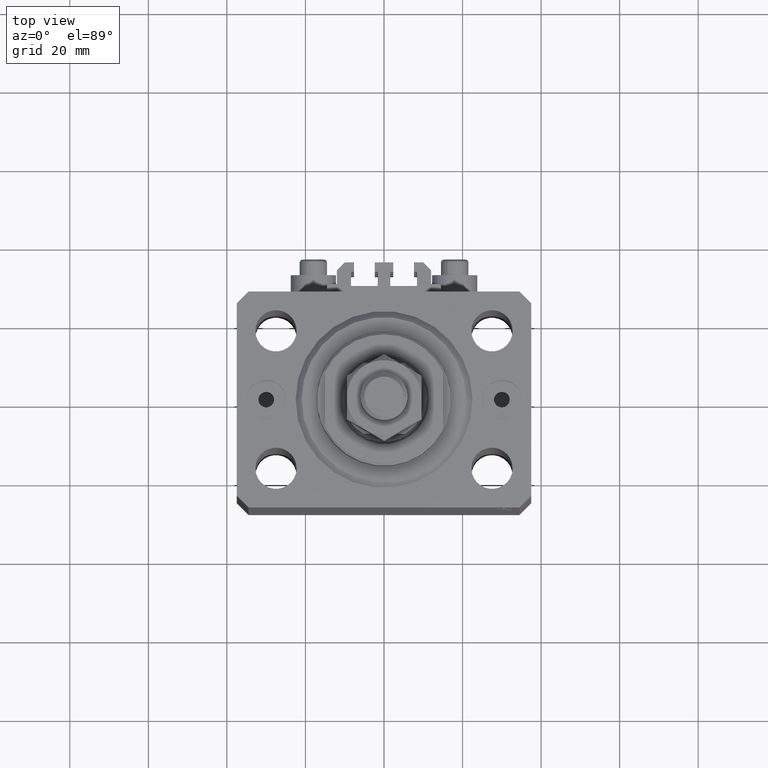
[diagram: clean part render]
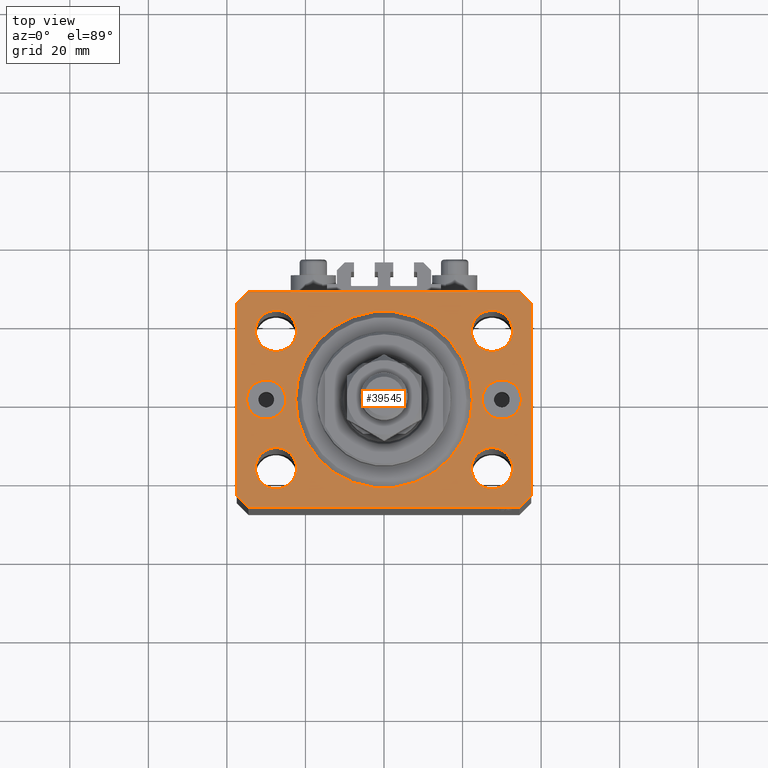
[diagram: same view with one face highlighted and labeled with its STEP entity id]
A machine part, top view. The second image highlights one B-rep face of the part: STEP entity #39545.
In plain terms, the highlighted planar face has unit normal (0, 0, 1).
Its self-contained STEP definition (entity closure, byte-faithful):
#265 = VERTEX_POINT ( 'NONE', #33346 ) ;
#489 = EDGE_CURVE ( 'NONE', #5830, #20445, #37962, .T. ) ;
#872 = ORIENTED_EDGE ( 'NONE', *, *, #40766, .T. ) ;
#874 = DIRECTION ( 'NONE',  ( 1.000000000000000000, 0.000000000000000000, 0.000000000000000000 ) ) ;
#1490 = EDGE_CURVE ( 'NONE', #15923, #10307, #40342, .T. ) ;
#1747 = DIRECTION ( 'NONE',  ( 1.000000000000000000, 0.000000000000000000, 0.000000000000000000 ) ) ;
#1877 = CARTESIAN_POINT ( 'NONE',  ( 30.00000000000000000, 0.000000000000000000, 0.000000000000000000 ) ) ;
#2494 = VERTEX_POINT ( 'NONE', #30656 ) ;
#2560 = CARTESIAN_POINT ( 'NONE',  ( 37.49999999999999289, -24.50000000000000000, 0.000000000000000000 ) ) ;
#2578 = ORIENTED_EDGE ( 'NONE', *, *, #28746, .F. ) ;
#2737 = VERTEX_POINT ( 'NONE', #5616 ) ;
#2840 = DIRECTION ( 'NONE',  ( 1.000000000000000000, 0.000000000000000000, 0.000000000000000000 ) ) ;
#3229 = AXIS2_PLACEMENT_3D ( 'NONE', #7163, #3471, #14592 ) ;
#3349 = AXIS2_PLACEMENT_3D ( 'NONE', #28516, #35655, #2840 ) ;
#3471 = DIRECTION ( 'NONE',  ( 0.000000000000000000, 0.000000000000000000, 1.000000000000000000 ) ) ;
#3740 = DIRECTION ( 'NONE',  ( 0.7071067811865474617, 0.7071067811865474617, 0.000000000000000000 ) ) ;
#3762 = ORIENTED_EDGE ( 'NONE', *, *, #29335, .F. ) ;
#3779 = CARTESIAN_POINT ( 'NONE',  ( 34.50000000000056843, 27.50000000000000000, 0.000000000000000000 ) ) ;
#3959 = LINE ( 'NONE', #19021, #20581 ) ;
#4161 = DIRECTION ( 'NONE',  ( 1.000000000000000000, 0.000000000000000000, 0.000000000000000000 ) ) ;
#4497 = CIRCLE ( 'NONE', #34434, 5.250000000000000888 ) ;
#4749 = LINE ( 'NONE', #17079, #44800 ) ;
#5234 = CARTESIAN_POINT ( 'NONE',  ( -22.50000000000000355, 2.755455298081545172E-15, 0.000000000000000000 ) ) ;
#5478 = ORIENTED_EDGE ( 'NONE', *, *, #28835, .F. ) ;
#5616 = CARTESIAN_POINT ( 'NONE',  ( -34.49999999999999289, 27.50000000000000000, 0.000000000000000000 ) ) ;
#5687 = FACE_BOUND ( 'NONE', #10079, .T. ) ;
#5830 = VERTEX_POINT ( 'NONE', #48112 ) ;
#5992 = ORIENTED_EDGE ( 'NONE', *, *, #36576, .T. ) ;
#6073 = CIRCLE ( 'NONE', #24201, 5.250000000000000888 ) ;
#6126 = DIRECTION ( 'NONE',  ( 1.000000000000000000, 0.000000000000000000, 0.000000000000000000 ) ) ;
#6426 = FACE_BOUND ( 'NONE', #32392, .T. ) ;
#6619 = CARTESIAN_POINT ( 'NONE',  ( -37.49999999999999289, -24.50000000000000000, 0.000000000000000000 ) ) ;
#6817 = DIRECTION ( 'NONE',  ( 1.000000000000000000, 0.000000000000000000, 0.000000000000000000 ) ) ;
#6919 = VERTEX_POINT ( 'NONE', #20368 ) ;
#7163 = CARTESIAN_POINT ( 'NONE',  ( 0.000000000000000000, 0.000000000000000000, 0.000000000000000000 ) ) ;
#7411 = CARTESIAN_POINT ( 'NONE',  ( 0.000000000000000000, 0.000000000000000000, 0.000000000000000000 ) ) ;
#7442 = LINE ( 'NONE', #30380, #36112 ) ;
#7929 = EDGE_CURVE ( 'NONE', #34036, #6919, #26684, .T. ) ;
#8361 = VERTEX_POINT ( 'NONE', #3779 ) ;
#8806 = CARTESIAN_POINT ( 'NONE',  ( 30.00000000000000000, 0.000000000000000000, 0.000000000000000000 ) ) ;
#8896 = CIRCLE ( 'NONE', #40428, 5.250000000000000888 ) ;
#9247 = ORIENTED_EDGE ( 'NONE', *, *, #22452, .F. ) ;
#9389 = FACE_BOUND ( 'NONE', #24411, .T. ) ;
#9634 = DIRECTION ( 'NONE',  ( 0.000000000000000000, 0.000000000000000000, 1.000000000000000000 ) ) ;
#9679 = DIRECTION ( 'NONE',  ( 0.000000000000000000, 0.000000000000000000, 1.000000000000000000 ) ) ;
#9964 = DIRECTION ( 'NONE',  ( 1.076236605503979380E-14, 1.000000000000000000, 0.000000000000000000 ) ) ;
#9975 = EDGE_CURVE ( 'NONE', #6919, #34036, #46318, .T. ) ;
#10079 = EDGE_LOOP ( 'NONE', ( #2578, #13354 ) ) ;
#10216 = ORIENTED_EDGE ( 'NONE', *, *, #16322, .F. ) ;
#10307 = VERTEX_POINT ( 'NONE', #5234 ) ;
#10429 = EDGE_CURVE ( 'NONE', #2494, #18162, #7442, .T. ) ;
#10459 = DIRECTION ( 'NONE',  ( 1.000000000000000000, 0.000000000000000000, 0.000000000000000000 ) ) ;
#10582 = LINE ( 'NONE', #6619, #32366 ) ;
#11120 = DIRECTION ( 'NONE',  ( 0.000000000000000000, 0.000000000000000000, 1.000000000000000000 ) ) ;
#11954 = VECTOR ( 'NONE', #38840, 1000.000000000000114 ) ;
#11985 = DIRECTION ( 'NONE',  ( 0.000000000000000000, 0.000000000000000000, 1.000000000000000000 ) ) ;
#12287 = CARTESIAN_POINT ( 'NONE',  ( 25.00000000000000000, 6.123233995736762338E-16, 0.000000000000000000 ) ) ;
#12726 = LINE ( 'NONE', #46522, #32812 ) ;
#13354 = ORIENTED_EDGE ( 'NONE', *, *, #30433, .F. ) ;
#13509 = VERTEX_POINT ( 'NONE', #37346 ) ;
#13545 = DIRECTION ( 'NONE',  ( 0.000000000000000000, 0.000000000000000000, 1.000000000000000000 ) ) ;
#14105 = ORIENTED_EDGE ( 'NONE', *, *, #30168, .F. ) ;
#14208 = VERTEX_POINT ( 'NONE', #40117 ) ;
#14444 = VERTEX_POINT ( 'NONE', #35572 ) ;
#14592 = DIRECTION ( 'NONE',  ( 1.000000000000000000, 0.000000000000000000, -0.000000000000000000 ) ) ;
#14709 = CARTESIAN_POINT ( 'NONE',  ( 27.50000000000000000, 17.49999999999999289, 0.000000000000000000 ) ) ;
#15011 = VERTEX_POINT ( 'NONE', #18985 ) ;
#15061 = CIRCLE ( 'NONE', #16635, 5.250000000000000888 ) ;
#15923 = VERTEX_POINT ( 'NONE', #29307 ) ;
#16128 = EDGE_CURVE ( 'NONE', #27089, #14208, #10582, .T. ) ;
#16315 = CIRCLE ( 'NONE', #24170, 5.250000000000000888 ) ;
#16322 = EDGE_CURVE ( 'NONE', #27784, #13509, #15061, .T. ) ;
#16635 = AXIS2_PLACEMENT_3D ( 'NONE', #40095, #28531, #35903 ) ;
#17079 = CARTESIAN_POINT ( 'NONE',  ( -34.49999999999999289, 27.50000000000000000, 0.000000000000000000 ) ) ;
#17081 = AXIS2_PLACEMENT_3D ( 'NONE', #8806, #24086, #42849 ) ;
#17209 = CARTESIAN_POINT ( 'NONE',  ( -32.75000000000000000, 17.49999999999999645, 0.000000000000000000 ) ) ;
#17248 = DIRECTION ( 'NONE',  ( 0.7071067811865483499, -0.7071067811865466846, 0.000000000000000000 ) ) ;
#17559 = EDGE_CURVE ( 'NONE', #265, #8361, #20342, .T. ) ;
#17591 = DIRECTION ( 'NONE',  ( 1.000000000000000000, 0.000000000000000000, 0.000000000000000000 ) ) ;
#17874 = LINE ( 'NONE', #2560, #17970 ) ;
#17933 = CIRCLE ( 'NONE', #39946, 5.250000000000000888 ) ;
#17970 = VECTOR ( 'NONE', #9964, 1000.000000000000000 ) ;
#18162 = VERTEX_POINT ( 'NONE', #30860 ) ;
#18450 = ORIENTED_EDGE ( 'NONE', *, *, #24515, .T. ) ;
#18668 = ORIENTED_EDGE ( 'NONE', *, *, #32219, .T. ) ;
#18985 = CARTESIAN_POINT ( 'NONE',  ( -37.49999999999999289, 24.50000000000000000, 0.000000000000000000 ) ) ;
#19021 = CARTESIAN_POINT ( 'NONE',  ( 34.50000000000056843, 27.50000000000000000, 0.000000000000000000 ) ) ;
#20342 = LINE ( 'NONE', #20583, #11954 ) ;
#20368 = CARTESIAN_POINT ( 'NONE',  ( 22.25000000000000000, 17.49999999999999289, 0.000000000000000000 ) ) ;
#20445 = VERTEX_POINT ( 'NONE', #23028 ) ;
#20581 = VECTOR ( 'NONE', #22950, 1000.000000000000000 ) ;
#20583 = CARTESIAN_POINT ( 'NONE',  ( 37.50000000000051870, 24.49999999999995381, 0.000000000000000000 ) ) ;
#20744 = FACE_BOUND ( 'NONE', #33980, .T. ) ;
#21356 = AXIS2_PLACEMENT_3D ( 'NONE', #7411, #11120, #30835 ) ;
#21826 = CIRCLE ( 'NONE', #17081, 4.999999999999997335 ) ;
#22236 = VERTEX_POINT ( 'NONE', #29873 ) ;
#22452 = EDGE_CURVE ( 'NONE', #14444, #47701, #8896, .T. ) ;
#22950 = DIRECTION ( 'NONE',  ( -1.000000000000000000, 0.000000000000000000, 0.000000000000000000 ) ) ;
#23024 = ORIENTED_EDGE ( 'NONE', *, *, #7929, .F. ) ;
#23028 = CARTESIAN_POINT ( 'NONE',  ( -34.99999999999999289, 6.123233995736768255E-16, 0.000000000000000000 ) ) ;
#23569 = LINE ( 'NONE', #38855, #40300 ) ;
#24086 = DIRECTION ( 'NONE',  ( 0.000000000000000000, -0.000000000000000000, -1.000000000000000000 ) ) ;
#24170 = AXIS2_PLACEMENT_3D ( 'NONE', #38358, #11985, #874 ) ;
#24201 = AXIS2_PLACEMENT_3D ( 'NONE', #24629, #13545, #6126 ) ;
#24291 = CARTESIAN_POINT ( 'NONE',  ( 32.74999999999999289, -17.50000000000000000, 0.000000000000000000 ) ) ;
#24411 = EDGE_LOOP ( 'NONE', ( #9247, #14105 ) ) ;
#24442 = CARTESIAN_POINT ( 'NONE',  ( -32.74999999999999289, -17.50000000000000000, 0.000000000000000000 ) ) ;
#24515 = EDGE_CURVE ( 'NONE', #14208, #2494, #12726, .T. ) ;
#24629 = CARTESIAN_POINT ( 'NONE',  ( 27.49999999999999289, -17.50000000000000000, 0.000000000000000000 ) ) ;
#25728 = ORIENTED_EDGE ( 'NONE', *, *, #10429, .T. ) ;
#25875 = DIRECTION ( 'NONE',  ( 1.000000000000000000, 0.000000000000000000, 0.000000000000000000 ) ) ;
#25880 = DIRECTION ( 'NONE',  ( 0.000000000000000000, 0.000000000000000000, 1.000000000000000000 ) ) ;
#25919 = EDGE_LOOP ( 'NONE', ( #23024, #26741 ) ) ;
#25986 = AXIS2_PLACEMENT_3D ( 'NONE', #1877, #36397, #32705 ) ;
#26684 = CIRCLE ( 'NONE', #30623, 5.250000000000000888 ) ;
#26741 = ORIENTED_EDGE ( 'NONE', *, *, #9975, .F. ) ;
#27064 = CARTESIAN_POINT ( 'NONE',  ( -30.00000000000000000, 0.000000000000000000, 0.000000000000000000 ) ) ;
#27089 = VERTEX_POINT ( 'NONE', #37258 ) ;
#27691 = DIRECTION ( 'NONE',  ( -0.7071067811865471286, -0.7071067811865479058, 0.000000000000000000 ) ) ;
#27784 = VERTEX_POINT ( 'NONE', #24442 ) ;
#28516 = CARTESIAN_POINT ( 'NONE',  ( 0.000000000000000000, 0.000000000000000000, 0.000000000000000000 ) ) ;
#28531 = DIRECTION ( 'NONE',  ( 0.000000000000000000, 0.000000000000000000, 1.000000000000000000 ) ) ;
#28544 = CARTESIAN_POINT ( 'NONE',  ( -27.49999999999999289, -17.50000000000000000, 0.000000000000000000 ) ) ;
#28651 = ORIENTED_EDGE ( 'NONE', *, *, #16128, .T. ) ;
#28746 = EDGE_CURVE ( 'NONE', #41648, #22236, #16315, .T. ) ;
#28835 = EDGE_CURVE ( 'NONE', #20445, #5830, #28906, .T. ) ;
#28906 = CIRCLE ( 'NONE', #46236, 5.000000000000000888 ) ;
#29226 = CIRCLE ( 'NONE', #21356, 22.50000000000000355 ) ;
#29270 = EDGE_CURVE ( 'NONE', #34051, #29293, #21826, .T. ) ;
#29293 = VERTEX_POINT ( 'NONE', #12287 ) ;
#29307 = CARTESIAN_POINT ( 'NONE',  ( 22.50000000000000355, 0.000000000000000000, 0.000000000000000000 ) ) ;
#29335 = EDGE_CURVE ( 'NONE', #13509, #27784, #4497, .T. ) ;
#29873 = CARTESIAN_POINT ( 'NONE',  ( 22.24999999999999289, -17.50000000000000000, 0.000000000000000000 ) ) ;
#30168 = EDGE_CURVE ( 'NONE', #47701, #14444, #17933, .T. ) ;
#30380 = CARTESIAN_POINT ( 'NONE',  ( 34.49999999999999289, -27.49999999999999645, 0.000000000000000000 ) ) ;
#30433 = EDGE_CURVE ( 'NONE', #22236, #41648, #6073, .T. ) ;
#30596 = ORIENTED_EDGE ( 'NONE', *, *, #39710, .F. ) ;
#30623 = AXIS2_PLACEMENT_3D ( 'NONE', #14709, #9679, #17591 ) ;
#30656 = CARTESIAN_POINT ( 'NONE',  ( 34.49999999999999289, -27.49999999999999645, 0.000000000000000000 ) ) ;
#30835 = DIRECTION ( 'NONE',  ( 1.000000000000000000, 0.000000000000000000, 0.000000000000000000 ) ) ;
#30860 = CARTESIAN_POINT ( 'NONE',  ( 37.49999999999999289, -24.50000000000000000, 0.000000000000000000 ) ) ;
#31346 = AXIS2_PLACEMENT_3D ( 'NONE', #48821, #25880, #4161 ) ;
#31995 = EDGE_CURVE ( 'NONE', #18162, #265, #17874, .T. ) ;
#32219 = EDGE_CURVE ( 'NONE', #2737, #15011, #4749, .T. ) ;
#32366 = VECTOR ( 'NONE', #17248, 1000.000000000000000 ) ;
#32392 = EDGE_LOOP ( 'NONE', ( #38743, #5992 ) ) ;
#32705 = DIRECTION ( 'NONE',  ( 1.000000000000000000, 0.000000000000000000, 0.000000000000000000 ) ) ;
#32812 = VECTOR ( 'NONE', #46286, 1000.000000000000000 ) ;
#32904 = DIRECTION ( 'NONE',  ( 0.000000000000000000, 0.000000000000000000, 1.000000000000000000 ) ) ;
#33052 = EDGE_LOOP ( 'NONE', ( #33357, #30596 ) ) ;
#33249 = AXIS2_PLACEMENT_3D ( 'NONE', #27064, #38389, #34689 ) ;
#33346 = CARTESIAN_POINT ( 'NONE',  ( 37.50000000000051870, 24.49999999999995381, 0.000000000000000000 ) ) ;
#33357 = ORIENTED_EDGE ( 'NONE', *, *, #1490, .F. ) ;
#33980 = EDGE_LOOP ( 'NONE', ( #3762, #10216 ) ) ;
#34036 = VERTEX_POINT ( 'NONE', #35454 ) ;
#34051 = VERTEX_POINT ( 'NONE', #40394 ) ;
#34434 = AXIS2_PLACEMENT_3D ( 'NONE', #28544, #40856, #6817 ) ;
#34689 = DIRECTION ( 'NONE',  ( 1.000000000000000000, 0.000000000000000000, 0.000000000000000000 ) ) ;
#35407 = ORIENTED_EDGE ( 'NONE', *, *, #489, .F. ) ;
#35454 = CARTESIAN_POINT ( 'NONE',  ( 32.75000000000000000, 17.49999999999999289, 0.000000000000000000 ) ) ;
#35572 = CARTESIAN_POINT ( 'NONE',  ( -22.25000000000000000, 17.49999999999999645, 0.000000000000000000 ) ) ;
#35655 = DIRECTION ( 'NONE',  ( 0.000000000000000000, 0.000000000000000000, 1.000000000000000000 ) ) ;
#35776 = FACE_BOUND ( 'NONE', #33052, .T. ) ;
#35903 = DIRECTION ( 'NONE',  ( 1.000000000000000000, 0.000000000000000000, 0.000000000000000000 ) ) ;
#36112 = VECTOR ( 'NONE', #3740, 1000.000000000000114 ) ;
#36397 = DIRECTION ( 'NONE',  ( 0.000000000000000000, -0.000000000000000000, -1.000000000000000000 ) ) ;
#36576 = EDGE_CURVE ( 'NONE', #29293, #34051, #47237, .T. ) ;
#37258 = CARTESIAN_POINT ( 'NONE',  ( -37.49999999999999289, -24.50000000000000000, 0.000000000000000000 ) ) ;
#37346 = CARTESIAN_POINT ( 'NONE',  ( -22.24999999999999289, -17.50000000000000000, 0.000000000000000000 ) ) ;
#37949 = EDGE_LOOP ( 'NONE', ( #872, #18668, #43279, #28651, #18450, #25728, #43726, #43368 ) ) ;
#37962 = CIRCLE ( 'NONE', #33249, 5.000000000000000888 ) ;
#38358 = CARTESIAN_POINT ( 'NONE',  ( 27.49999999999999289, -17.50000000000000000, 0.000000000000000000 ) ) ;
#38389 = DIRECTION ( 'NONE',  ( 0.000000000000000000, 0.000000000000000000, 1.000000000000000000 ) ) ;
#38613 = DIRECTION ( 'NONE',  ( 0.000000000000000000, -1.000000000000000000, 0.000000000000000000 ) ) ;
#38743 = ORIENTED_EDGE ( 'NONE', *, *, #29270, .T. ) ;
#38840 = DIRECTION ( 'NONE',  ( -0.7071067811865364705, 0.7071067811865584529, 0.000000000000000000 ) ) ;
#38855 = CARTESIAN_POINT ( 'NONE',  ( -37.49999999999999289, 24.50000000000000000, 0.000000000000000000 ) ) ;
#39341 = EDGE_LOOP ( 'NONE', ( #35407, #5478 ) ) ;
#39474 = FACE_BOUND ( 'NONE', #25919, .T. ) ;
#39475 = CARTESIAN_POINT ( 'NONE',  ( -27.50000000000000000, 17.49999999999999645, 0.000000000000000000 ) ) ;
#39545 = ADVANCED_FACE ( 'NONE', ( #43192, #9389, #39474, #5687, #20744, #35776, #40211, #6426 ), #43930, .T. ) ;
#39710 = EDGE_CURVE ( 'NONE', #10307, #15923, #29226, .T. ) ;
#39946 = AXIS2_PLACEMENT_3D ( 'NONE', #39475, #9634, #1747 ) ;
#40095 = CARTESIAN_POINT ( 'NONE',  ( -27.49999999999999289, -17.50000000000000000, 0.000000000000000000 ) ) ;
#40117 = CARTESIAN_POINT ( 'NONE',  ( -34.49999999999998579, -27.49999999999999645, 0.000000000000000000 ) ) ;
#40211 = FACE_BOUND ( 'NONE', #39341, .T. ) ;
#40300 = VECTOR ( 'NONE', #38613, 1000.000000000000000 ) ;
#40342 = CIRCLE ( 'NONE', #3349, 22.50000000000000355 ) ;
#40394 = CARTESIAN_POINT ( 'NONE',  ( 34.99999999999999289, 0.000000000000000000, 0.000000000000000000 ) ) ;
#40428 = AXIS2_PLACEMENT_3D ( 'NONE', #45114, #48814, #25875 ) ;
#40766 = EDGE_CURVE ( 'NONE', #8361, #2737, #3959, .T. ) ;
#40856 = DIRECTION ( 'NONE',  ( 0.000000000000000000, 0.000000000000000000, 1.000000000000000000 ) ) ;
#41590 = EDGE_CURVE ( 'NONE', #15011, #27089, #23569, .T. ) ;
#41648 = VERTEX_POINT ( 'NONE', #24291 ) ;
#42785 = CARTESIAN_POINT ( 'NONE',  ( -30.00000000000000000, 0.000000000000000000, 0.000000000000000000 ) ) ;
#42849 = DIRECTION ( 'NONE',  ( 1.000000000000000000, 0.000000000000000000, 0.000000000000000000 ) ) ;
#43192 = FACE_OUTER_BOUND ( 'NONE', #37949, .T. ) ;
#43279 = ORIENTED_EDGE ( 'NONE', *, *, #41590, .T. ) ;
#43368 = ORIENTED_EDGE ( 'NONE', *, *, #17559, .T. ) ;
#43726 = ORIENTED_EDGE ( 'NONE', *, *, #31995, .T. ) ;
#43930 = PLANE ( 'NONE',  #3229 ) ;
#44800 = VECTOR ( 'NONE', #27691, 1000.000000000000000 ) ;
#45114 = CARTESIAN_POINT ( 'NONE',  ( -27.50000000000000000, 17.49999999999999645, 0.000000000000000000 ) ) ;
#46236 = AXIS2_PLACEMENT_3D ( 'NONE', #42785, #32904, #10459 ) ;
#46286 = DIRECTION ( 'NONE',  ( 1.000000000000000000, 0.000000000000000000, 0.000000000000000000 ) ) ;
#46318 = CIRCLE ( 'NONE', #31346, 5.250000000000000888 ) ;
#46522 = CARTESIAN_POINT ( 'NONE',  ( -34.49999999999998579, -27.49999999999999645, 0.000000000000000000 ) ) ;
#47237 = CIRCLE ( 'NONE', #25986, 4.999999999999997335 ) ;
#47701 = VERTEX_POINT ( 'NONE', #17209 ) ;
#48112 = CARTESIAN_POINT ( 'NONE',  ( -24.99999999999999645, 0.000000000000000000, 0.000000000000000000 ) ) ;
#48814 = DIRECTION ( 'NONE',  ( 0.000000000000000000, 0.000000000000000000, 1.000000000000000000 ) ) ;
#48821 = CARTESIAN_POINT ( 'NONE',  ( 27.50000000000000000, 17.49999999999999289, 0.000000000000000000 ) ) ;